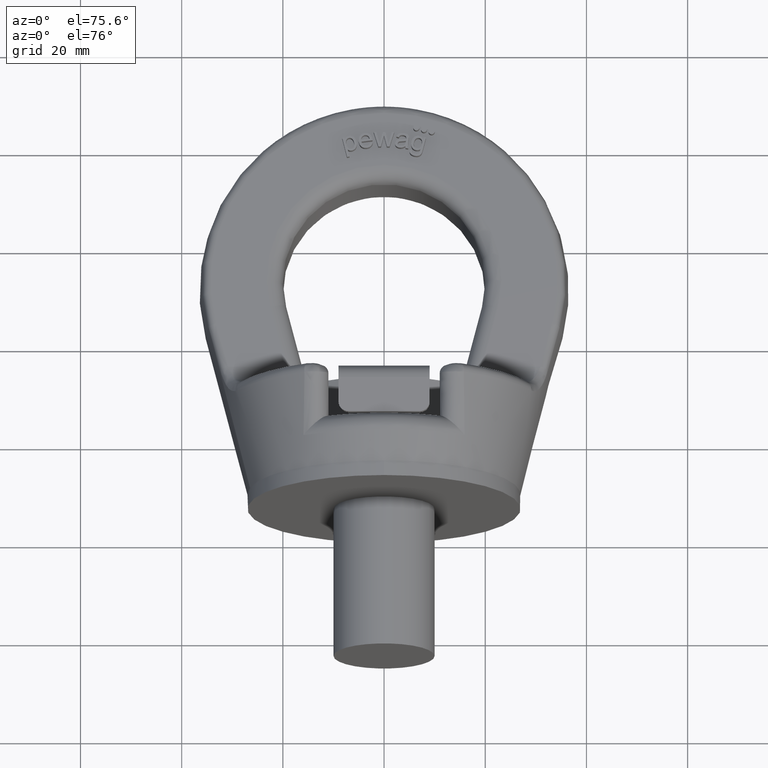
[diagram: clean part render]
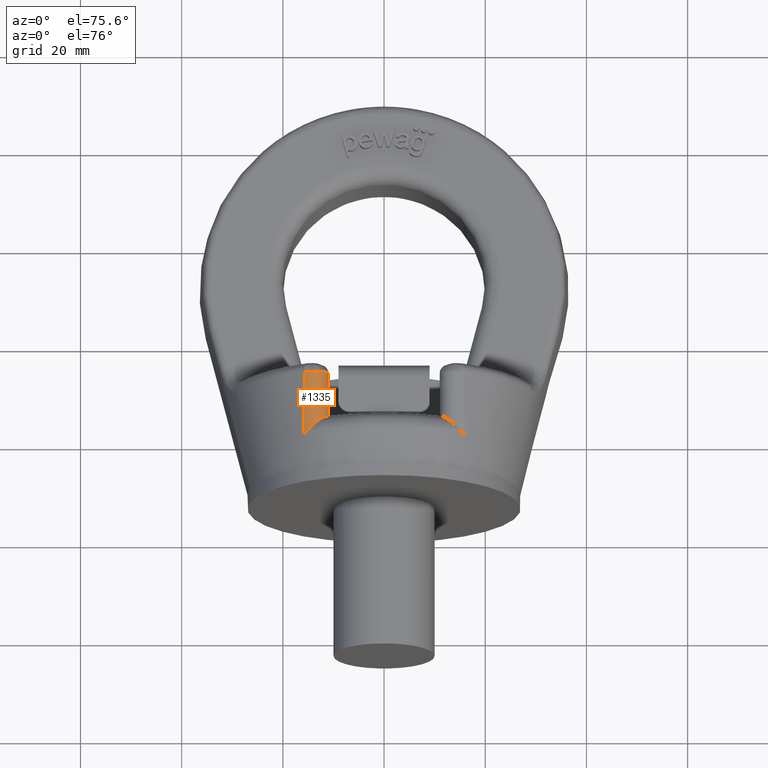
[diagram: same view with one face highlighted and labeled with its STEP entity id]
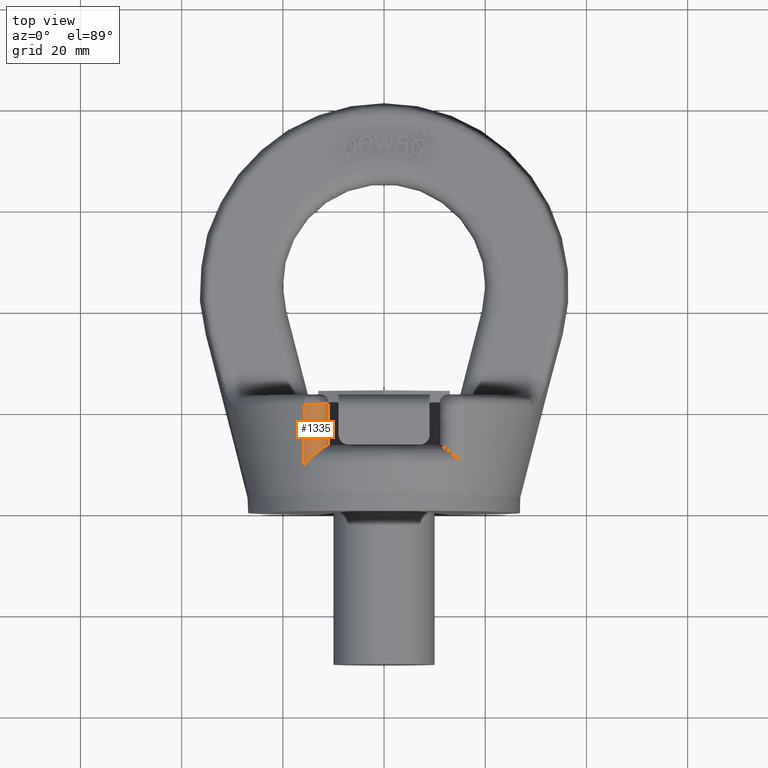
[diagram: same view with one face highlighted and labeled with its STEP entity id]
A machine part, auxiliary view. The second image highlights one B-rep face of the part: STEP entity #1335.
A second angle (top view) of the same face is appended — the face is thin or edge-on in the first view.
In plain terms, the highlighted face is a freeform B-spline surface patch.
Its self-contained STEP definition (entity closure, byte-faithful):
#1025=(
BOUNDED_SURFACE()
B_SPLINE_SURFACE(3,2,((#6996,#6997,#6998),(#6999,#7000,#7001),(#7002,#7003,
#7004),(#7005,#7006,#7007)),.UNSPECIFIED.,.F.,.F.,.F.)
B_SPLINE_SURFACE_WITH_KNOTS((4,4),(3,3),(0.,1.),(0.,1.),.UNSPECIFIED.)
GEOMETRIC_REPRESENTATION_ITEM()
RATIONAL_B_SPLINE_SURFACE(((1.,0.509282077243217,1.),(1.,0.500594671319157,
1.),(1.,0.490777416375322,1.),(1.,0.479185485437556,1.)))
REPRESENTATION_ITEM('')
SURFACE()
);
#1111=FACE_OUTER_BOUND('',#1851,.T.);
#1335=ADVANCED_FACE('',(#1111),#1025,.T.);
#1851=EDGE_LOOP('',(#2907,#2908,#2909,#2910,#2911));
#2907=ORIENTED_EDGE('',*,*,#4347,.F.);
#2908=ORIENTED_EDGE('',*,*,#4430,.T.);
#2909=ORIENTED_EDGE('',*,*,#4388,.F.);
#2910=ORIENTED_EDGE('',*,*,#4431,.F.);
#2911=ORIENTED_EDGE('',*,*,#4349,.F.);
#3959=VERTEX_POINT('',#6632);
#3960=VERTEX_POINT('',#6640);
#3961=VERTEX_POINT('',#6647);
#3998=VERTEX_POINT('',#6830);
#3999=VERTEX_POINT('',#6838);
#4347=EDGE_CURVE('',#3959,#3960,#4879,.T.);
#4349=EDGE_CURVE('',#3960,#3961,#4880,.T.);
#4388=EDGE_CURVE('',#3998,#3999,#4896,.T.);
#4430=EDGE_CURVE('',#3959,#3999,#4901,.T.);
#4431=EDGE_CURVE('',#3961,#3998,#4902,.T.);
#4879=B_SPLINE_CURVE_WITH_KNOTS('',3,(#6633,#6634,#6635,#6636,#6637,#6638,
#6639),.UNSPECIFIED.,.F.,.F.,(4,3,4),(0.,0.314704734168954,1.),
 .UNSPECIFIED.);
#4880=B_SPLINE_CURVE_WITH_KNOTS('',3,(#6643,#6644,#6645,#6646),
 .UNSPECIFIED.,.F.,.F.,(4,4),(0.,1.),.UNSPECIFIED.);
#4896=B_SPLINE_CURVE_WITH_KNOTS('',3,(#6831,#6832,#6833,#6834,#6835,#6836,
#6837),.UNSPECIFIED.,.F.,.F.,(4,3,4),(0.,0.746692437274741,1.),
 .UNSPECIFIED.);
#4901=B_SPLINE_CURVE_WITH_KNOTS('',3,(#6966,#6967,#6968,#6969,#6970,#6971,
#6972,#6973,#6974,#6975,#6976,#6977,#6978,#6979,#6980,#6981,#6982,#6983,
#6984,#6985,#6986,#6987),.UNSPECIFIED.,.F.,.F.,(4,3,3,3,3,3,3,4),(0.,0.0530849997396826,
0.217382230700914,0.376354486562543,0.531751607381942,0.686687843368128,
0.843687573052223,1.),.UNSPECIFIED.);
#4902=B_SPLINE_CURVE_WITH_KNOTS('',3,(#6988,#6989,#6990,#6991,#6992,#6993,
#6994,#6995),.UNSPECIFIED.,.F.,.F.,(4,2,2,4),(0.,0.25,0.5,1.),
 .UNSPECIFIED.);
#6632=CARTESIAN_POINT('',(-11.,21.4,24.6366973963621));
#6633=CARTESIAN_POINT('',(-11.,21.4,24.6366973963621));
#6634=CARTESIAN_POINT('',(-11.,20.5178093179416,24.3743625995523));
#6635=CARTESIAN_POINT('',(-11.,19.6359031565021,24.1110687007188));
#6636=CARTESIAN_POINT('',(-11.,18.754313738638,23.84672036341));
#6637=CARTESIAN_POINT('',(-11.,16.8345855572754,23.2710817015286));
#6638=CARTESIAN_POINT('',(-11.,14.916339126825,22.6904653447581));
#6639=CARTESIAN_POINT('',(-11.,13.,22.1036429607526));
#6640=CARTESIAN_POINT('',(-11.,13.,22.1036429607526));
#6643=CARTESIAN_POINT('',(-11.,13.,22.1036429607526));
#6644=CARTESIAN_POINT('',(-11.,13.,22.3717313278362));
#6645=CARTESIAN_POINT('',(-11.031175268281,13.,22.6415939864479));
#6646=CARTESIAN_POINT('',(-11.0925260053939,13.,22.9025680457359));
#6647=CARTESIAN_POINT('',(-11.0925260053939,13.,22.9025680457359));
#6830=CARTESIAN_POINT('',(-15.9291755573174,9.00163423418238,23.6885869205043));
#6831=CARTESIAN_POINT('',(-15.9291755573174,9.00163423418238,23.6885869205043));
#6832=CARTESIAN_POINT('',(-15.8770326783705,11.9801002864094,24.648368576212));
#6833=CARTESIAN_POINT('',(-15.829453966245,14.9657001945547,25.5863889859365));
#6834=CARTESIAN_POINT('',(-15.785445715597,17.9559479728204,26.5092330839177));
#6835=CARTESIAN_POINT('',(-15.770516164402,18.970372691692,26.8223027470611));
#6836=CARTESIAN_POINT('',(-15.7559999337423,19.9853514773661,27.1336014044788));
#6837=CARTESIAN_POINT('',(-15.741865372925,21.0008171170914,27.4433154087881));
#6838=CARTESIAN_POINT('',(-15.741865372925,21.0008171170914,27.4433154087881));
#6966=CARTESIAN_POINT('',(-11.,21.4,24.6366973963621));
#6967=CARTESIAN_POINT('',(-11.,21.3832603576892,24.7542607923367));
#6968=CARTESIAN_POINT('',(-11.0064858305428,21.3664982668186,24.8719985853573));
#6969=CARTESIAN_POINT('',(-11.0194024273901,21.3498625489566,24.9888650994445));
#6970=CARTESIAN_POINT('',(-11.0588780857035,21.299020525947,25.3460321329057));
#6971=CARTESIAN_POINT('',(-11.1606220292052,21.2484556391142,25.7014132706365));
#6972=CARTESIAN_POINT('',(-11.3166303574352,21.2023142190879,26.0258264324769));
#6973=CARTESIAN_POINT('',(-11.4676948501068,21.1576350004429,26.3399590833776));
#6974=CARTESIAN_POINT('',(-11.6735652208656,21.1159269471963,26.633323627174));
#6975=CARTESIAN_POINT('',(-11.9186202164524,21.0804823060893,26.8826983701644));
#6976=CARTESIAN_POINT('',(-12.1582631916908,21.0458204570999,27.1265656915241));
#6977=CARTESIAN_POINT('',(-12.4414706597575,21.0162669259865,27.3345637182537));
#6978=CARTESIAN_POINT('',(-12.7469631074557,20.9941275326738,27.4904023573867));
#6979=CARTESIAN_POINT('',(-13.0515283391289,20.9720553357857,27.6457680025566));
#6980=CARTESIAN_POINT('',(-13.3860141383771,20.9567958408598,27.7532052633061));
#6981=CARTESIAN_POINT('',(-13.724747845879,20.9495636524575,27.8041249723741));
#6982=CARTESIAN_POINT('',(-14.0678532259126,20.942238125959,27.8557018474947));
#6983=CARTESIAN_POINT('',(-14.4242985987281,20.9429651616288,27.850582373168));
#6984=CARTESIAN_POINT('',(-14.7657515481371,20.9516848578117,27.7891902773241));
#6985=CARTESIAN_POINT('',(-15.1057721549928,20.9603679762117,27.7280557118705));
#6986=CARTESIAN_POINT('',(-15.4398186660765,20.9771987149374,27.6095586122227));
#6987=CARTESIAN_POINT('',(-15.7418653729229,21.0008171170915,27.4433154087893));
#6988=CARTESIAN_POINT('',(-11.0925260053939,13.,22.9025680457359));
#6989=CARTESIAN_POINT('',(-11.2365061086135,13.,23.5150312982113));
#6990=CARTESIAN_POINT('',(-11.5780739435398,12.8010781302692,24.0576663479175));
#6991=CARTESIAN_POINT('',(-12.435503990957,12.1793401429735,24.7113728297932));
#6992=CARTESIAN_POINT('',(-12.9305452249651,11.7787213747801,24.8436594537012));
#6993=CARTESIAN_POINT('',(-14.345204921113,10.5757088949326,24.8552266937649));
#6994=CARTESIAN_POINT('',(-15.2289696717492,9.74703359851162,24.3908567341524));
#6995=CARTESIAN_POINT('',(-15.9291755573174,9.00163423418237,23.6885869205044));
#6996=CARTESIAN_POINT('',(-15.7400433011125,21.1318746314275,27.4832779396564));
#6997=CARTESIAN_POINT('',(-11.,20.391181907148,29.9780548263654));
#6998=CARTESIAN_POINT('',(-11.,21.9302403972452,24.7942486102015));
#6999=CARTESIAN_POINT('',(-15.7966315250197,17.0567957124548,26.2409888428171));
#7000=CARTESIAN_POINT('',(-10.9999999999512,16.1919062295373,28.8633745362124));
#7001=CARTESIAN_POINT('',(-11.,17.8551720094518,23.5843714777867));
#7002=CARTESIAN_POINT('',(-15.8592945877959,12.9874373463089,24.9735060559772));
#7003=CARTESIAN_POINT('',(-11.000000000036,12.0335765672555,27.7600348856678));
#7004=CARTESIAN_POINT('',(-11.,13.7858246263496,22.3549809146389));
#7005=CARTESIAN_POINT('',(-15.9304401314942,8.92945297283104,23.6653224329016));
#7006=CARTESIAN_POINT('',(-11.,7.98935914583598,26.6923092156491));
#7007=CARTESIAN_POINT('',(-11.,9.72781873864866,21.0946826185199));